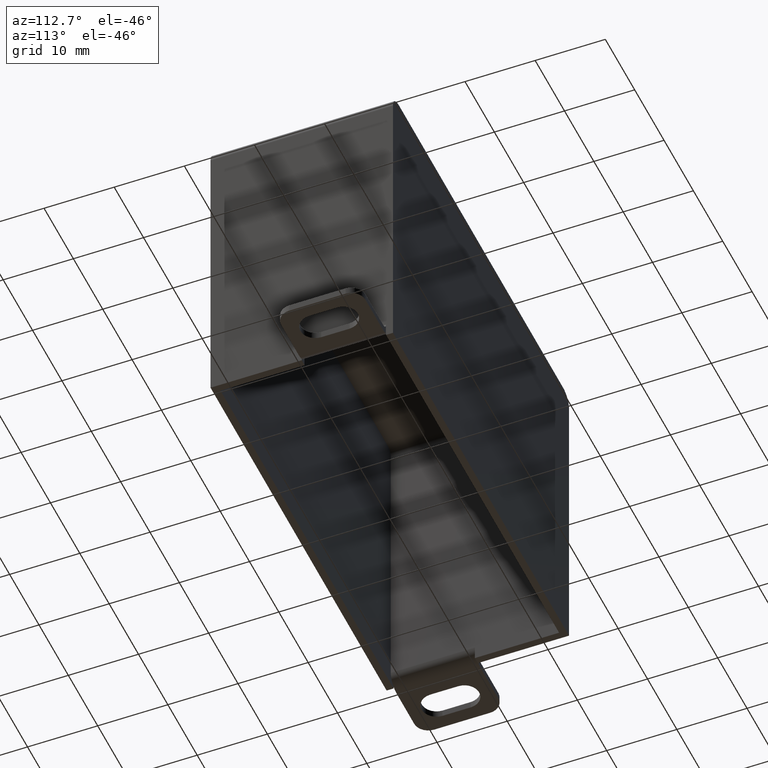
[diagram: clean part render]
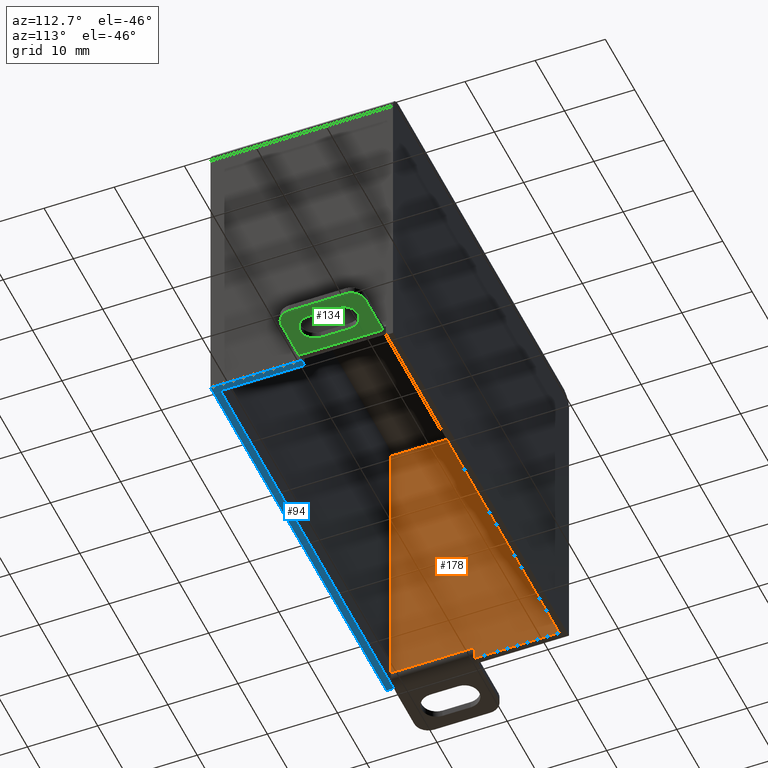
[diagram: same view with three faces highlighted in distinct colors, each labeled with its STEP entity id]
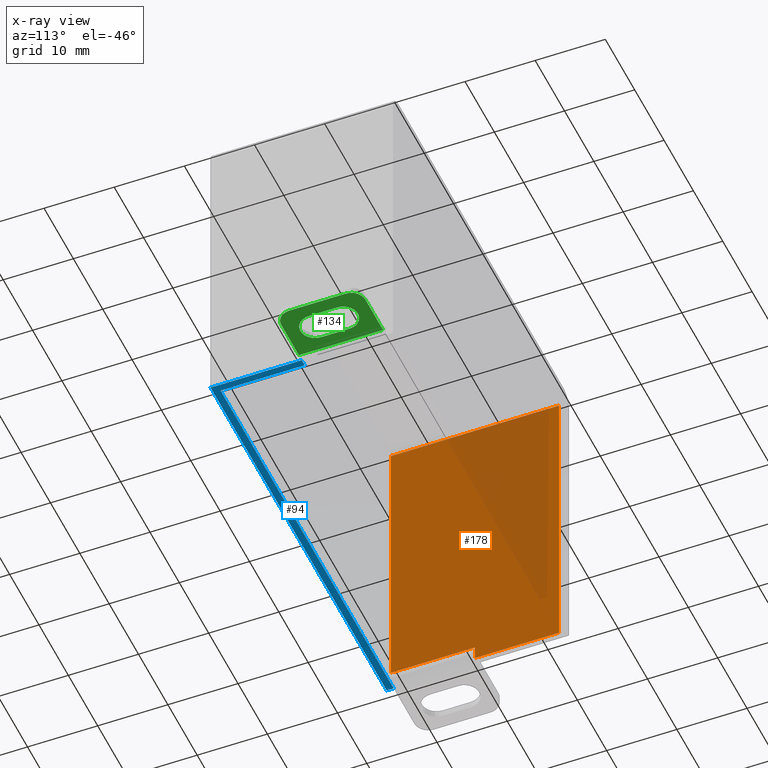
[diagram: x-ray of the same camera — body ghosted, the three highlighted faces saturated]
A machine part, auxiliary view with three faces highlighted in distinct colors.
The next image is the same camera in x-ray (body ghosted, the three faces saturated) — at least one of them is partly hidden behind the body in this view.
Their STEP definitions:

[orange] entity #178 — the highlighted planar face has unit normal (1, 0, 0).
#178 = ADVANCED_FACE( '', ( #369 ), #370, .T. );
#369 = FACE_OUTER_BOUND( '', #596, .T. );
#370 = PLANE( '', #597 );
#596 = EDGE_LOOP( '', ( #1057, #1058, #1059, #1060, #1061, #1062 ) );
#597 = AXIS2_PLACEMENT_3D( '', #1063, #1064, #1065 );
#1057 = ORIENTED_EDGE( '', *, *, #1212, .T. );
#1058 = ORIENTED_EDGE( '', *, *, #1233, .T. );
#1059 = ORIENTED_EDGE( '', *, *, #1319, .F. );
#1060 = ORIENTED_EDGE( '', *, *, #1337, .F. );
#1061 = ORIENTED_EDGE( '', *, *, #1159, .F. );
#1062 = ORIENTED_EDGE( '', *, *, #1329, .F. );
#1063 = CARTESIAN_POINT( '', ( -29.0000000000000, -12.0000000000000, -35.3788384898645 ) );
#1064 = DIRECTION( '', ( 1.00000000000000, 0.000000000000000, 0.000000000000000 ) );
#1065 = DIRECTION( '', ( 0.000000000000000, -1.00000000000000, -0.000000000000000 ) );
#1159 = EDGE_CURVE( '', #1369, #1371, #1372, .T. );
#1212 = EDGE_CURVE( '', #1464, #1462, #1465, .T. );
#1233 = EDGE_CURVE( '', #1462, #1495, #1498, .F. );
#1319 = EDGE_CURVE( '', #1621, #1495, #1622, .T. );
#1329 = EDGE_CURVE( '', #1464, #1369, #1632, .T. );
#1337 = EDGE_CURVE( '', #1371, #1621, #1641, .T. );
#1369 = VERTEX_POINT( '', #1678 );
#1371 = VERTEX_POINT( '', #1681 );
#1372 = LINE( '', #1682, #1683 );
#1462 = VERTEX_POINT( '', #1809 );
#1464 = VERTEX_POINT( '', #1811 );
#1465 = LINE( '', #1812, #1813 );
#1495 = VERTEX_POINT( '', #1853 );
#1498 = LINE( '', #1856, #1857 );
#1621 = VERTEX_POINT( '', #2020 );
#1622 = LINE( '', #2021, #2022 );
#1632 = LINE( '', #2034, #2035 );
#1641 = LINE( '', #2046, #2047 );
#1678 = CARTESIAN_POINT( '', ( -29.0000000000000, -1.73472347597681E-015, 8.67361737988404E-016 ) );
#1681 = CARTESIAN_POINT( '', ( -29.0000000000000, -1.73472347597681E-015, 2.00000000000000 ) );
#1682 = CARTESIAN_POINT( '', ( -29.0000000000000, -1.73472347597681E-015, 8.67361737988404E-016 ) );
#1683 = VECTOR( '', #2074, 1000.00000000000 );
#1809 = CARTESIAN_POINT( '', ( -29.0000000000000, 12.0000000000000, 43.0000000000000 ) );
#1811 = CARTESIAN_POINT( '', ( -29.0000000000000, 12.0000000000000, 0.000000000000000 ) );
#1812 = CARTESIAN_POINT( '', ( -29.0000000000000, 12.0000000000000, -35.3788384898645 ) );
#1813 = VECTOR( '', #2132, 1000.00000000000 );
#1853 = CARTESIAN_POINT( '', ( -29.0000000000000, -12.0000000000000, 43.0000000000000 ) );
#1856 = CARTESIAN_POINT( '', ( -29.0000000000000, -12.0000000000000, 43.0000000000000 ) );
#1857 = VECTOR( '', #2161, 1000.00000000000 );
#2020 = CARTESIAN_POINT( '', ( -29.0000000000000, -12.0000000000000, 2.00000000000000 ) );
#2021 = CARTESIAN_POINT( '', ( -29.0000000000000, -12.0000000000000, -35.3788384898645 ) );
#2022 = VECTOR( '', #2271, 1000.00000000000 );
#2034 = CARTESIAN_POINT( '', ( -29.0000000000000, 13.0000000000000, 0.000000000000000 ) );
#2035 = VECTOR( '', #2283, 1000.00000000000 );
#2046 = CARTESIAN_POINT( '', ( -29.0000000000000, -1.73472347597681E-015, 2.00000000000000 ) );
#2047 = VECTOR( '', #2289, 1000.00000000000 );
#2074 = DIRECTION( '', ( 0.000000000000000, 6.12303176911189E-017, 1.00000000000000 ) );
#2132 = DIRECTION( '', ( 0.000000000000000, -0.000000000000000, 1.00000000000000 ) );
#2161 = DIRECTION( '', ( 0.000000000000000, 1.00000000000000, -0.000000000000000 ) );
#2271 = DIRECTION( '', ( 0.000000000000000, -0.000000000000000, 1.00000000000000 ) );
#2283 = DIRECTION( '', ( 0.000000000000000, -1.00000000000000, 0.000000000000000 ) );
#2289 = DIRECTION( '', ( -0.000000000000000, -1.00000000000000, 0.000000000000000 ) );

[blue] entity #94 — the highlighted planar face has unit normal (0, 0, -1).
#94 = ADVANCED_FACE( '', ( #233 ), #234, .T. );
#233 = FACE_OUTER_BOUND( '', #426, .T. );
#234 = PLANE( '', #427 );
#426 = EDGE_LOOP( '', ( #679, #680, #681, #682, #683, #684 ) );
#427 = AXIS2_PLACEMENT_3D( '', #685, #686, #687 );
#679 = ORIENTED_EDGE( '', *, *, #1182, .F. );
#680 = ORIENTED_EDGE( '', *, *, #1183, .T. );
#681 = ORIENTED_EDGE( '', *, *, #1184, .T. );
#682 = ORIENTED_EDGE( '', *, *, #1185, .T. );
#683 = ORIENTED_EDGE( '', *, *, #1186, .T. );
#684 = ORIENTED_EDGE( '', *, *, #1187, .T. );
#685 = CARTESIAN_POINT( '', ( -30.0000000000000, 13.0000000000000, 0.000000000000000 ) );
#686 = DIRECTION( '', ( 0.000000000000000, 0.000000000000000, -1.00000000000000 ) );
#687 = DIRECTION( '', ( 0.000000000000000, 1.00000000000000, 0.000000000000000 ) );
#1182 = EDGE_CURVE( '', #1409, #1410, #1411, .T. );
#1183 = EDGE_CURVE( '', #1409, #1412, #1413, .T. );
#1184 = EDGE_CURVE( '', #1412, #1414, #1415, .T. );
#1185 = EDGE_CURVE( '', #1414, #1416, #1417, .T. );
#1186 = EDGE_CURVE( '', #1416, #1418, #1419, .T. );
#1187 = EDGE_CURVE( '', #1418, #1410, #1420, .T. );
#1409 = VERTEX_POINT( '', #1733 );
#1410 = VERTEX_POINT( '', #1734 );
#1411 = LINE( '', #1735, #1736 );
#1412 = VERTEX_POINT( '', #1737 );
#1413 = LINE( '', #1738, #1739 );
#1414 = VERTEX_POINT( '', #1740 );
#1415 = LINE( '', #1741, #1742 );
#1416 = VERTEX_POINT( '', #1743 );
#1417 = LINE( '', #1744, #1745 );
#1418 = VERTEX_POINT( '', #1746 );
#1419 = LINE( '', #1747, #1748 );
#1420 = LINE( '', #1749, #1750 );
#1733 = CARTESIAN_POINT( '', ( 30.0000000000000, -1.93909558549032E-015, 8.67361737988404E-016 ) );
#1734 = CARTESIAN_POINT( '', ( 29.0000000000000, -1.81663495010809E-015, 8.67361737988404E-016 ) );
#1735 = CARTESIAN_POINT( '', ( 31.0000000000000, -2.06155622087256E-015, 8.67361737988404E-016 ) );
#1736 = VECTOR( '', #2100, 1000.00000000000 );
#1737 = CARTESIAN_POINT( '', ( 30.0000000000000, -13.0000000000000, 0.000000000000000 ) );
#1738 = CARTESIAN_POINT( '', ( 30.0000000000000, 13.0000000000000, 0.000000000000000 ) );
#1739 = VECTOR( '', #2101, 1000.00000000000 );
#1740 = CARTESIAN_POINT( '', ( -30.0000000000000, -13.0000000000000, 0.000000000000000 ) );
#1741 = CARTESIAN_POINT( '', ( 30.0000000000000, -13.0000000000000, 0.000000000000000 ) );
#1742 = VECTOR( '', #2102, 1000.00000000000 );
#1743 = CARTESIAN_POINT( '', ( -30.0000000000000, -12.0000000000000, 8.67361737988404E-016 ) );
#1744 = CARTESIAN_POINT( '', ( -30.0000000000000, -13.0000000000000, 0.000000000000000 ) );
#1745 = VECTOR( '', #2103, 1000.00000000000 );
#1746 = CARTESIAN_POINT( '', ( 29.0000000000000, -12.0000000000000, 0.000000000000000 ) );
#1747 = CARTESIAN_POINT( '', ( -30.0000000000000, -12.0000000000000, 0.000000000000000 ) );
#1748 = VECTOR( '', #2104, 1000.00000000000 );
#1749 = CARTESIAN_POINT( '', ( 29.0000000000000, 13.0000000000000, 0.000000000000000 ) );
#1750 = VECTOR( '', #2105, 1000.00000000000 );
#2100 = DIRECTION( '', ( -1.00000000000000, 1.22460635382238E-016, 0.000000000000000 ) );
#2101 = DIRECTION( '', ( 0.000000000000000, -1.00000000000000, 0.000000000000000 ) );
#2102 = DIRECTION( '', ( -1.00000000000000, 0.000000000000000, 0.000000000000000 ) );
#2103 = DIRECTION( '', ( 0.000000000000000, 1.00000000000000, 0.000000000000000 ) );
#2104 = DIRECTION( '', ( 1.00000000000000, -0.000000000000000, 0.000000000000000 ) );
#2105 = DIRECTION( '', ( 0.000000000000000, 1.00000000000000, 0.000000000000000 ) );

[green] entity #134 — the highlighted planar face has unit normal (0, 0, -1).
#134 = ADVANCED_FACE( '', ( #297, #298 ), #299, .T. );
#297 = FACE_OUTER_BOUND( '', #524, .T. );
#298 = FACE_BOUND( '', #525, .T. );
#299 = PLANE( '', #526 );
#524 = EDGE_LOOP( '', ( #863, #864, #865, #866, #867, #868 ) );
#525 = EDGE_LOOP( '', ( #869, #870, #871, #872 ) );
#526 = AXIS2_PLACEMENT_3D( '', #873, #874, #875 );
#863 = ORIENTED_EDGE( '', *, *, #1283, .T. );
#864 = ORIENTED_EDGE( '', *, *, #1284, .F. );
#865 = ORIENTED_EDGE( '', *, *, #1285, .F. );
#866 = ORIENTED_EDGE( '', *, *, #1286, .F. );
#867 = ORIENTED_EDGE( '', *, *, #1287, .F. );
#868 = ORIENTED_EDGE( '', *, *, #1288, .F. );
#869 = ORIENTED_EDGE( '', *, *, #1289, .F. );
#870 = ORIENTED_EDGE( '', *, *, #1290, .F. );
#871 = ORIENTED_EDGE( '', *, *, #1236, .F. );
#872 = ORIENTED_EDGE( '', *, *, #1189, .F. );
#873 = CARTESIAN_POINT( '', ( -30.0000000000000, 13.0000000000000, 0.000000000000000 ) );
#874 = DIRECTION( '', ( 0.000000000000000, 0.000000000000000, -1.00000000000000 ) );
#875 = DIRECTION( '', ( 0.000000000000000, 1.00000000000000, 0.000000000000000 ) );
#1189 = EDGE_CURVE( '', #1422, #1423, #1424, .T. );
#1236 = EDGE_CURVE( '', #1423, #1501, #1502, .T. );
#1283 = EDGE_CURVE( '', #1572, #1573, #1574, .T. );
#1284 = EDGE_CURVE( '', #1575, #1573, #1576, .T. );
#1285 = EDGE_CURVE( '', #1577, #1575, #1578, .T. );
#1286 = EDGE_CURVE( '', #1579, #1577, #1580, .T. );
#1287 = EDGE_CURVE( '', #1581, #1579, #1582, .T. );
#1288 = EDGE_CURVE( '', #1572, #1581, #1583, .T. );
#1289 = EDGE_CURVE( '', #1584, #1422, #1585, .T. );
#1290 = EDGE_CURVE( '', #1501, #1584, #1586, .T. );
#1422 = VERTEX_POINT( '', #1752 );
#1423 = VERTEX_POINT( '', #1753 );
#1424 = CIRCLE( '', #1754, 2.10000000000000 );
#1501 = VERTEX_POINT( '', #1861 );
#1502 = LINE( '', #1862, #1863 );
#1572 = VERTEX_POINT( '', #1955 );
#1573 = VERTEX_POINT( '', #1956 );
#1574 = LINE( '', #1957, #1958 );
#1575 = VERTEX_POINT( '', #1959 );
#1576 = LINE( '', #1960, #1961 );
#1577 = VERTEX_POINT( '', #1962 );
#1578 = CIRCLE( '', #1963, 2.00000000000000 );
#1579 = VERTEX_POINT( '', #1964 );
#1580 = LINE( '', #1965, #1966 );
#1581 = VERTEX_POINT( '', #1967 );
#1582 = CIRCLE( '', #1968, 2.00000000000000 );
#1583 = LINE( '', #1969, #1970 );
#1584 = VERTEX_POINT( '', #1971 );
#1585 = LINE( '', #1972, #1973 );
#1586 = CIRCLE( '', #1974, 2.10000000000000 );
#1752 = CARTESIAN_POINT( '', ( 37.1000000000000, 4.00000000000000, 0.000000000000000 ) );
#1753 = CARTESIAN_POINT( '', ( 32.9000000000000, 4.00000000000000, 0.000000000000000 ) );
#1754 = AXIS2_PLACEMENT_3D( '', #2106, #2107, #2108 );
#1861 = CARTESIAN_POINT( '', ( 32.9000000000000, 8.00000000000000, 0.000000000000000 ) );
#1862 = CARTESIAN_POINT( '', ( 32.9000000000000, 4.00000000000000, 0.000000000000000 ) );
#1863 = VECTOR( '', #2163, 1000.00000000000 );
#1955 = CARTESIAN_POINT( '', ( 31.0000000000000, -2.06155622087256E-015, 8.67361737988404E-016 ) );
#1956 = CARTESIAN_POINT( '', ( 31.0000000000000, 12.0000000000000, 8.67361737988404E-016 ) );
#1957 = CARTESIAN_POINT( '', ( 31.0000000000000, -2.06155622087256E-015, 8.67361737988404E-016 ) );
#1958 = VECTOR( '', #2225, 1000.00000000000 );
#1959 = CARTESIAN_POINT( '', ( 37.0000000000000, 12.0000000000000, 0.000000000000000 ) );
#1960 = CARTESIAN_POINT( '', ( 37.0000000000000, 12.0000000000000, 0.000000000000000 ) );
#1961 = VECTOR( '', #2226, 1000.00000000000 );
#1962 = CARTESIAN_POINT( '', ( 39.0000000000000, 9.99999999999999, 0.000000000000000 ) );
#1963 = AXIS2_PLACEMENT_3D( '', #2227, #2228, #2229 );
#1964 = CARTESIAN_POINT( '', ( 39.0000000000000, 1.99999999999999, 0.000000000000000 ) );
#1965 = CARTESIAN_POINT( '', ( 39.0000000000000, 1.99999999999999, 0.000000000000000 ) );
#1966 = VECTOR( '', #2230, 1000.00000000000 );
#1967 = CARTESIAN_POINT( '', ( 37.0000000000000, -4.53104350914280E-015, 0.000000000000000 ) );
#1968 = AXIS2_PLACEMENT_3D( '', #2231, #2232, #2233 );
#1969 = CARTESIAN_POINT( '', ( 30.0000000000000, -3.67381906146713E-015, 0.000000000000000 ) );
#1970 = VECTOR( '', #2234, 1000.00000000000 );
#1971 = CARTESIAN_POINT( '', ( 37.1000000000000, 7.99999999999999, 0.000000000000000 ) );
#1972 = CARTESIAN_POINT( '', ( 37.1000000000000, 7.99999999999999, 0.000000000000000 ) );
#1973 = VECTOR( '', #2235, 1000.00000000000 );
#1974 = AXIS2_PLACEMENT_3D( '', #2236, #2237, #2238 );
#2106 = CARTESIAN_POINT( '', ( 35.0000000000000, 4.00000000000000, 0.000000000000000 ) );
#2107 = DIRECTION( '', ( 0.000000000000000, 0.000000000000000, -1.00000000000000 ) );
#2108 = DIRECTION( '', ( -1.00000000000000, 1.22460635382238E-016, 0.000000000000000 ) );
#2163 = DIRECTION( '', ( 1.22460635382238E-016, 1.00000000000000, 0.000000000000000 ) );
#2225 = DIRECTION( '', ( 1.22460635382238E-016, 1.00000000000000, 0.000000000000000 ) );
#2226 = DIRECTION( '', ( -1.00000000000000, 1.22460635382238E-016, 0.000000000000000 ) );
#2227 = CARTESIAN_POINT( '', ( 37.0000000000000, 9.99999999999999, 0.000000000000000 ) );
#2228 = DIRECTION( '', ( 0.000000000000000, 0.000000000000000, 1.00000000000000 ) );
#2229 = DIRECTION( '', ( 1.00000000000000, -1.22460635382238E-016, 0.000000000000000 ) );
#2230 = DIRECTION( '', ( 1.22460635382238E-016, 1.00000000000000, 0.000000000000000 ) );
#2231 = CARTESIAN_POINT( '', ( 37.0000000000000, 1.99999999999999, 0.000000000000000 ) );
#2232 = DIRECTION( '', ( 0.000000000000000, 0.000000000000000, 1.00000000000000 ) );
#2233 = DIRECTION( '', ( -1.22460635382238E-016, -1.00000000000000, 0.000000000000000 ) );
#2234 = DIRECTION( '', ( 1.00000000000000, -1.22460635382238E-016, 0.000000000000000 ) );
#2235 = DIRECTION( '', ( -1.22460635382238E-016, -1.00000000000000, 0.000000000000000 ) );
#2236 = CARTESIAN_POINT( '', ( 35.0000000000000, 8.00000000000000, 0.000000000000000 ) );
#2237 = DIRECTION( '', ( 0.000000000000000, -0.000000000000000, -1.00000000000000 ) );
#2238 = DIRECTION( '', ( 1.00000000000000, -1.22460635382238E-016, 0.000000000000000 ) );